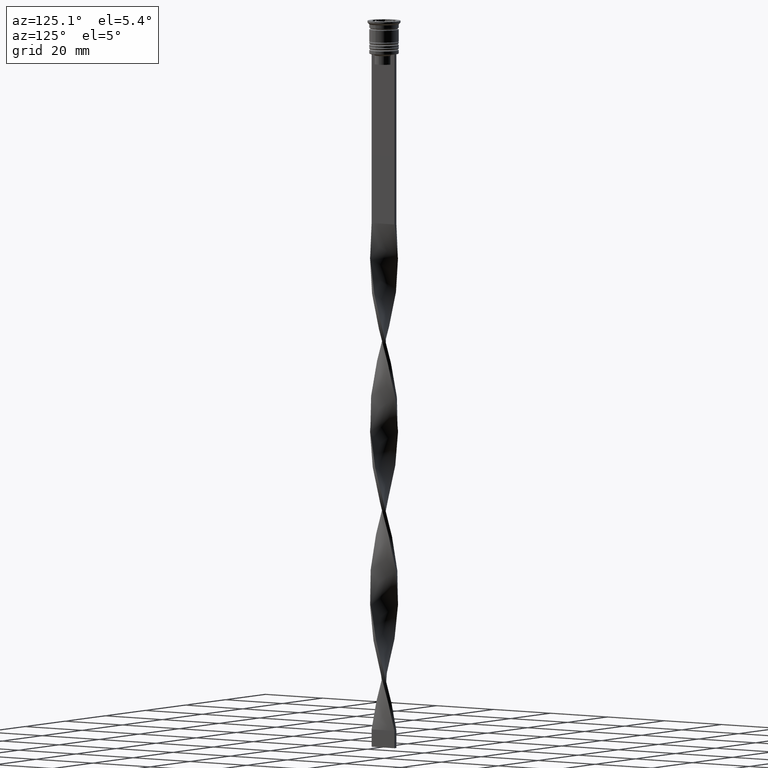
[diagram: clean part render]
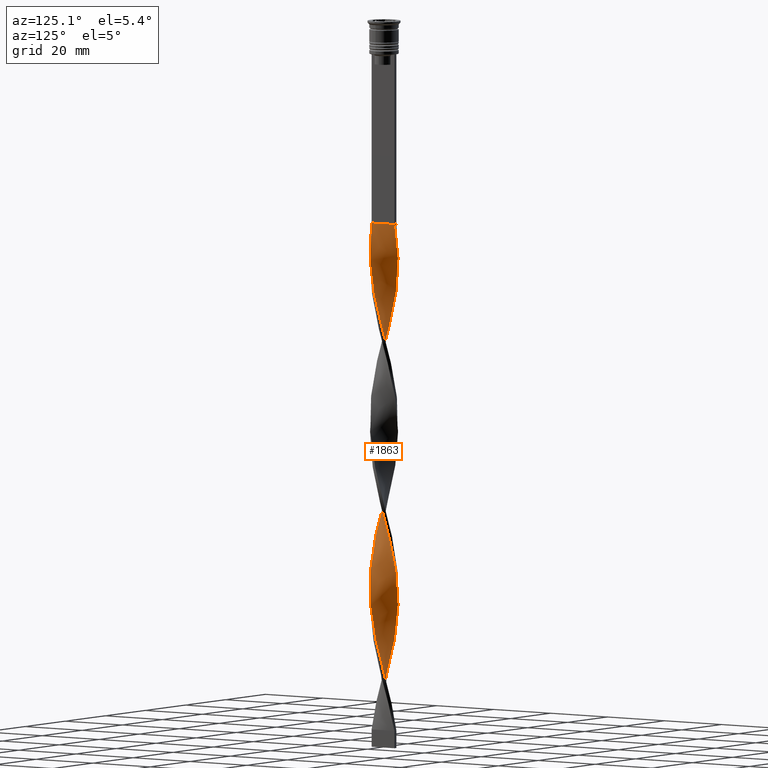
[diagram: same view with one face highlighted and labeled with its STEP entity id]
A machine part, auxiliary view. The second image highlights one B-rep face of the part: STEP entity #1863.
In plain terms, the highlighted face is a freeform B-spline surface patch.
Its self-contained STEP definition (entity closure, byte-faithful):
#8 = CARTESIAN_POINT ( 'NONE',  ( 3.927262761293755400, -0.9829235285346255013, -77.10784313725490335 ) ) ;
#15 = CARTESIAN_POINT ( 'NONE',  ( -3.984134067727318040, -0.6137391387019219824, -184.4607843137254690 ) ) ;
#28 = CARTESIAN_POINT ( 'NONE',  ( 1.226484621108232309, -3.840017639827321805, -61.36274509803921262 ) ) ;
#39 = CARTESIAN_POINT ( 'NONE',  ( 3.856468655234277065, 1.231739002543613681, -85.69607843137254122 ) ) ;
#49 = CARTESIAN_POINT ( 'NONE',  ( -2.020147525076906536, 3.508352239459040067, -165.8529411764705799 ) ) ;
#70 = CARTESIAN_POINT ( 'NONE',  ( 2.821583537095227356, -2.903135856687522942, -165.8529411764705799 ) ) ;
#88 = CARTESIAN_POINT ( 'NONE',  ( -3.493386227310585568, 2.011529931876906208, -121.4803921568627345 ) ) ;
#98 = CARTESIAN_POINT ( 'NONE',  ( -3.357783987531980152, 2.230535068783684682, -173.0098039215686185 ) ) ;
#106 = CARTESIAN_POINT ( 'NONE',  ( -4.029070884911789996, -0.1287936502943096417, -130.0686274509803866 ) ) ;
#121 = CARTESIAN_POINT ( 'NONE',  ( -1.911202779450789535, -3.549268084523846678, -198.7745098039215463 ) ) ;
#125 = CARTESIAN_POINT ( 'NONE',  ( -2.890751590931330828, -2.809547159157144591, -141.5196078431372371 ) ) ;
#126 = CARTESIAN_POINT ( 'NONE',  ( -3.803522343308519016, -1.335371777428621565, -89.99019607843136725 ) ) ;
#131 = CARTESIAN_POINT ( 'NONE',  ( 2.020147525076906980, 3.508352239459040067, -194.4803921568627629 ) ) ;
#138 = CARTESIAN_POINT ( 'NONE',  ( -0.8706545849681186500, -3.953668176878986085, -203.0686274509803582 ) ) ;
#142 = CARTESIAN_POINT ( 'NONE',  ( -2.821583537095226468, 2.903135856687523830, -117.1862745098039369 ) ) ;
#147 = CARTESIAN_POINT ( 'NONE',  ( 2.821583537095227356, -2.903135856687522942, -165.8529411764705799 ) ) ;
#155 = CARTESIAN_POINT ( 'NONE',  ( -2.240090901653235100, -3.372169066272034499, -197.3431372549019613 ) ) ;
#161 = CARTESIAN_POINT ( 'NONE',  ( -3.064287033196559040, -2.619187847059357477, -95.71568627450979250 ) ) ;
#166 = CARTESIAN_POINT ( 'NONE',  ( 3.936802525448487522, -0.8669405260007250202, -130.0686274509803866 ) ) ;
#169 = CARTESIAN_POINT ( 'NONE',  ( 3.564473500076193790, 1.919390561205868817, -185.8921568627451109 ) ) ;
#181 = CARTESIAN_POINT ( 'NONE',  ( 1.582314657248346412, 3.726367102775658413, -151.5392156862744741 ) ) ;
#182 = CARTESIAN_POINT ( 'NONE',  ( -0.4999999999999994449, 4.000000000000000000, -204.5000000000000000 ) ) ;
#188 = CARTESIAN_POINT ( 'NONE',  ( 3.679781925323283076, 1.687820026322619293, -140.0882352941176237 ) ) ;
#200 = CARTESIAN_POINT ( 'NONE',  ( 2.020147525076906536, 3.508352239459040067, -194.4803921568627914 ) ) ;
#203 = CARTESIAN_POINT ( 'NONE',  ( 1.341092642212325936, -3.819817009255230822, -114.3235294117646959 ) ) ;
#222 = CARTESIAN_POINT ( 'NONE',  ( -2.325278115975899507, 3.292883490705915239, -69.95098039215686470 ) ) ;
#240 = CARTESIAN_POINT ( 'NONE',  ( 0.6163684578805426195, 4.001202492166771485, -200.2058823529411598 ) ) ;
#241 = CARTESIAN_POINT ( 'NONE',  ( -3.710471077655235206, 1.575564781874740694, -78.53921568627450256 ) ) ;
#245 = CARTESIAN_POINT ( 'NONE',  ( 3.710471077655234762, -1.575564781874742026, -127.2058823529411740 ) ) ;
#254 = CARTESIAN_POINT ( 'NONE',  ( -3.493386227310585568, 2.011529931876906208, -121.4803921568627345 ) ) ;
#262 = CARTESIAN_POINT ( 'NONE',  ( 3.803522343308519016, -1.335371777428622009, -75.67647058823528994 ) ) ;
#266 = VERTEX_POINT ( 'NONE', #1638 ) ;
#272 = CARTESIAN_POINT ( 'NONE',  ( -3.927262761293755400, 0.9829235285346252793, -125.7745098039216032 ) ) ;
#280 = CARTESIAN_POINT ( 'NONE',  ( 3.151094474987767402, 2.541679576361500548, -91.42156862745096646 ) ) ;
#295 = CARTESIAN_POINT ( 'NONE',  ( 4.017136395662697979, 0.5021420494578370253, -82.83333333333332860 ) ) ;
#301 = CARTESIAN_POINT ( 'NONE',  ( -3.936802525448486634, 0.8669405260007252423, -81.40196078431371518 ) ) ;
#306 = CARTESIAN_POINT ( 'NONE',  ( -3.151094474987767402, 2.541679576361500104, -171.5784313725490335 ) ) ;
#316 = CARTESIAN_POINT ( 'NONE',  ( 0.6163684578805426195, 4.001202492166770597, -102.8725490196078312 ) ) ;
#323 = CARTESIAN_POINT ( 'NONE',  ( 0.8706545849681190941, -3.953668176878984752, -59.93137254901961342 ) ) ;
#335 = CARTESIAN_POINT ( 'NONE',  ( 3.984134067727318040, -0.6137391387019215383, -78.53921568627450256 ) ) ;
#337 = CARTESIAN_POINT ( 'NONE',  ( 3.936802525448487522, -0.8669405260007250202, -130.0686274509803866 ) ) ;
#342 = CARTESIAN_POINT ( 'NONE',  ( -3.064287033196559040, -2.619187847059357477, -193.0490196078431211 ) ) ;
#353 = CARTESIAN_POINT ( 'NONE',  ( 3.493386227310586012, -2.011529931876905763, -170.1470588235293917 ) ) ;
#360 = CARTESIAN_POINT ( 'NONE',  ( 3.984134067727318040, 0.6137391387019215383, -135.7941176470588118 ) ) ;
#366 = CARTESIAN_POINT ( 'NONE',  ( -0.6163684578805430636, -4.001202492166771485, -151.5392156862744741 ) ) ;
#379 = CARTESIAN_POINT ( 'NONE',  ( 3.564473500076193790, -1.919390561205869039, -125.7745098039216032 ) ) ;
#382 = CARTESIAN_POINT ( 'NONE',  ( -1.226484621108231421, 3.840017639827321805, -110.0294117647058698 ) ) ;
#393 = CARTESIAN_POINT ( 'NONE',  ( 3.306990529297890280, 2.335239837431195120, -142.9509803921568789 ) ) ;
#397 = CARTESIAN_POINT ( 'NONE',  ( 0.2435115214243305515, 4.023767157643892034, -104.3039215686274446 ) ) ;
#414 = CARTESIAN_POINT ( 'NONE',  ( -3.151094474987767402, -2.541679576361500104, -140.0882352941176237 ) ) ;
#431 = CARTESIAN_POINT ( 'NONE',  ( -4.041005374160881125, -0.2445547488692189353, -183.0294117647059124 ) ) ;
#437 = CARTESIAN_POINT ( 'NONE',  ( -2.530837219374230784, 3.137652461479778498, -115.7549019607843093 ) ) ;
#443 = CARTESIAN_POINT ( 'NONE',  ( 0.1293454150318811002, -4.046331823121016136, -154.4019607843137294 ) ) ;
#454 = CARTESIAN_POINT ( 'NONE',  ( -3.493386227310586456, -2.011529931876905319, -92.85294117647057988 ) ) ;
#460 = CARTESIAN_POINT ( 'NONE',  ( 1.226484621108232309, -3.840017639827321805, -158.6960784313725412 ) ) ;
#466 = CARTESIAN_POINT ( 'NONE',  ( -4.017136395662697979, 0.5021420494578374694, -180.1666666666666288 ) ) ;
#475 = CARTESIAN_POINT ( 'NONE',  ( 3.984134067727318040, 0.6137391387019215383, -135.7941176470588118 ) ) ;
#478 = CARTESIAN_POINT ( 'NONE',  ( 0.2435115214243305515, 4.023767157643892034, -201.6372549019607732 ) ) ;
#493 = CARTESIAN_POINT ( 'NONE',  ( 1.680620083644616125, 3.664084624357134778, -195.9117647058823479 ) ) ;
#496 = CARTESIAN_POINT ( 'NONE',  ( -0.5000000000000005551, -4.000000000000000000, -107.1666666666666572 ) ) ;
#502 = EDGE_CURVE ( 'NONE', #3267, #266, #563, .T. ) ;
#513 = CARTESIAN_POINT ( 'NONE',  ( -3.151094474987766958, 2.541679576361500104, -74.24509803921567652 ) ) ;
#517 = CARTESIAN_POINT ( 'NONE',  ( -0.8706545849681186500, -3.953668176878985641, -105.7352941176470722 ) ) ;
#532 = CARTESIAN_POINT ( 'NONE',  ( 0.2435115214243295800, -4.023767157643892034, -110.0294117647058698 ) ) ;
#533 = CARTESIAN_POINT ( 'NONE',  ( -3.856468655234277065, 1.231739002543613237, -79.97058823529411598 ) ) ;
#537 = CARTESIAN_POINT ( 'NONE',  ( 2.325278115975899507, -3.292883490705915239, -118.6176470588235219 ) ) ;
#550 = CARTESIAN_POINT ( 'NONE',  ( -2.240090901653234212, 3.372169066272035387, -114.3235294117646959 ) ) ;
#558 = CARTESIAN_POINT ( 'NONE',  ( -1.226484621108232531, -3.840017639827321805, -201.6372549019607732 ) ) ;
#563 = LINE ( 'NONE', #828, #2763 ) ;
#568 = CARTESIAN_POINT ( 'NONE',  ( -3.679781925323282632, 1.687820026322620182, -122.9117647058823621 ) ) ;
#571 = CARTESIAN_POINT ( 'NONE',  ( 2.325278115975899507, -3.292883490705915239, -118.6176470588235219 ) ) ;
#576 = CARTESIAN_POINT ( 'NONE',  ( 3.856468655234276621, 1.231739002543613681, -85.69607843137254122 ) ) ;
#579 = EDGE_LOOP ( 'NONE', ( #1577, #3077, #1030, #643 ) ) ;
#587 = CARTESIAN_POINT ( 'NONE',  ( 2.530837219374230340, -3.137652461479778943, -67.08823529411763786 ) ) ;
#591 = CARTESIAN_POINT ( 'NONE',  ( -2.630408706874892921, 3.077414741952791744, -71.38235294117646390 ) ) ;
#596 = CARTESIAN_POINT ( 'NONE',  ( -3.710471077655235206, 1.575564781874740694, -175.8725490196078454 ) ) ;
#609 = CARTESIAN_POINT ( 'NONE',  ( 1.911202779450789535, -3.549268084523846678, -64.22549019607842524 ) ) ;
#619 = CARTESIAN_POINT ( 'NONE',  ( -3.493386227310586456, -2.011529931876905319, -190.1862745098039227 ) ) ;
#630 = CARTESIAN_POINT ( 'NONE',  ( 3.306990529297890724, -2.335239837431193788, -71.38235294117646390 ) ) ;
#633 = CARTESIAN_POINT ( 'NONE',  ( 3.710471077655234762, -1.575564781874742026, -127.2058823529411740 ) ) ;
#637 = CARTESIAN_POINT ( 'NONE',  ( 3.064287033196558596, -2.619187847059357921, -69.95098039215686470 ) ) ;
#643 = ORIENTED_EDGE ( 'NONE', *, *, #937, .F. ) ;
#647 = CARTESIAN_POINT ( 'NONE',  ( 3.803522343308519016, -1.335371777428622009, -173.0098039215686185 ) ) ;
#654 = CARTESIAN_POINT ( 'NONE',  ( 0.6163684578805426195, 4.001202492166771485, -102.8725490196078312 ) ) ;
#672 = CARTESIAN_POINT ( 'NONE',  ( -3.984134067727318040, 0.6137391387019228706, -127.2058823529411740 ) ) ;
#688 = CARTESIAN_POINT ( 'NONE',  ( 1.226484621108231199, 3.840017639827321805, -152.9705882352941160 ) ) ;
#692 = CARTESIAN_POINT ( 'NONE',  ( -3.803522343308519016, 1.335371777428620899, -124.3431372549019471 ) ) ;
#693 = CARTESIAN_POINT ( 'NONE',  ( 0.5000000000000000000, 4.000000000000000000, -58.50000000000000000 ) ) ;
#706 = CARTESIAN_POINT ( 'NONE',  ( -3.493386227310586456, -2.011529931876905319, -190.1862745098039227 ) ) ;
#709 = CARTESIAN_POINT ( 'NONE',  ( 3.927262761293754956, -0.9829235285346253903, -174.4411764705882320 ) ) ;
#714 = CARTESIAN_POINT ( 'NONE',  ( -3.856468655234277065, -1.231739002543614125, -134.3627450980391984 ) ) ;
#722 = CARTESIAN_POINT ( 'NONE',  ( -3.564473500076193790, 1.919390561205869261, -174.4411764705882320 ) ) ;
#730 = CARTESIAN_POINT ( 'NONE',  ( 3.064287033196558596, -2.619187847059357921, -167.2843137254901933 ) ) ;
#737 = CARTESIAN_POINT ( 'NONE',  ( -0.9787305500464340557, -3.910509750710999821, -150.1078431372548891 ) ) ;
#745 = CARTESIAN_POINT ( 'NONE',  ( 0.5000000000000000000, 4.000000000000000000, -155.8333333333333144 ) ) ;
#755 = CARTESIAN_POINT ( 'NONE',  ( 3.856468655234277065, 1.231739002543613681, -183.0294117647059124 ) ) ;
#762 = CARTESIAN_POINT ( 'NONE',  ( -3.151094474987766958, 2.541679576361500104, -171.5784313725490620 ) ) ;
#770 = CARTESIAN_POINT ( 'NONE',  ( -2.630408706874893365, 3.077414741952792188, -71.38235294117646390 ) ) ;
#771 = CARTESIAN_POINT ( 'NONE',  ( 3.679781925323283076, -1.687820026322619293, -171.5784313725490620 ) ) ;
#788 = CARTESIAN_POINT ( 'NONE',  ( 2.240090901653234656, 3.372169066272035831, -148.6764705882353326 ) ) ;
#806 = CARTESIAN_POINT ( 'NONE',  ( -0.4999999999999994449, 4.000000000000000000, -204.5000000000000000 ) ) ;
#809 = CARTESIAN_POINT ( 'NONE',  ( -1.226484621108232531, -3.840017639827321805, -104.3039215686274446 ) ) ;
#824 = CARTESIAN_POINT ( 'NONE',  ( 4.041005374160881125, 0.2445547488692193794, -134.3627450980391984 ) ) ;
#828 = CARTESIAN_POINT ( 'NONE',  ( 0.5000000000000000000, -4.000000000000000000, -58.50000000000000000 ) ) ;
#835 = CARTESIAN_POINT ( 'NONE',  ( 3.679781925323283076, -1.687820026322619293, -74.24509803921567652 ) ) ;
#839 = CARTESIAN_POINT ( 'NONE',  ( -1.341092642212326380, 3.819817009255230822, -65.65686274509803866 ) ) ;
#844 = CARTESIAN_POINT ( 'NONE',  ( -2.240090901653235544, -3.372169066272034499, -100.0098039215686327 ) ) ;
#850 = DIRECTION ( 'NONE',  ( 0.000000000000000000, 1.000000000000000000, 0.000000000000000000 ) ) ;
#863 = CARTESIAN_POINT ( 'NONE',  ( 1.341092642212325936, -3.819817009255230822, -114.3235294117646959 ) ) ;
#869 = CARTESIAN_POINT ( 'NONE',  ( 4.041005374160881125, -0.2445547488692185190, -79.97058823529411598 ) ) ;
#879 = CARTESIAN_POINT ( 'NONE',  ( 2.240090901653234656, -3.372169066272035387, -65.65686274509803866 ) ) ;
#887 = CARTESIAN_POINT ( 'NONE',  ( 2.325278115975899951, 3.292883490705914795, -95.71568627450979250 ) ) ;
#898 = CARTESIAN_POINT ( 'NONE',  ( 3.564473500076193790, 1.919390561205868817, -88.55882352941175384 ) ) ;
#904 = CARTESIAN_POINT ( 'NONE',  ( -4.029070884911789996, 0.1287936502943097528, -181.5980392156862706 ) ) ;
#920 = CARTESIAN_POINT ( 'NONE',  ( -1.226484621108231421, 3.840017639827321805, -110.0294117647058698 ) ) ;
#927 = CARTESIAN_POINT ( 'NONE',  ( 1.582314657248345080, -3.726367102775659745, -62.79411764705881893 ) ) ;
#937 = EDGE_CURVE ( 'NONE', #266, #1673, #1918, .T. ) ;
#938 = CARTESIAN_POINT ( 'NONE',  ( -2.325278115975899063, -3.292883490705915683, -144.3823529411764639 ) ) ;
#944 = CARTESIAN_POINT ( 'NONE',  ( -3.803522343308519016, -1.335371777428621565, -187.3235294117646959 ) ) ;
#952 = CARTESIAN_POINT ( 'NONE',  ( -3.710471077655235206, -1.575564781874740694, -135.7941176470588118 ) ) ;
#963 = CARTESIAN_POINT ( 'NONE',  ( -3.710471077655235206, -1.575564781874740694, -135.7941176470588118 ) ) ;
#980 = CARTESIAN_POINT ( 'NONE',  ( 1.911202779450789979, 3.549268084523846678, -150.1078431372548891 ) ) ;
#987 = CARTESIAN_POINT ( 'NONE',  ( 3.564473500076194235, 1.919390561205868817, -185.8921568627451109 ) ) ;
#1002 = CARTESIAN_POINT ( 'NONE',  ( -0.1293454150318815721, 4.046331823121016136, -105.7352941176470722 ) ) ;
#1017 = CARTESIAN_POINT ( 'NONE',  ( -0.8706545849681194271, 3.953668176878984752, -108.5980392156862706 ) ) ;
#1021 = CARTESIAN_POINT ( 'NONE',  ( 0.1293454150318809337, 4.046331823121015248, -59.93137254901961342 ) ) ;
#1022 = CARTESIAN_POINT ( 'NONE',  ( 1.680620083644616125, 3.664084624357134778, -195.9117647058823479 ) ) ;
#1030 = ORIENTED_EDGE ( 'NONE', *, *, #3005, .F. ) ;
#1032 = CARTESIAN_POINT ( 'NONE',  ( 2.530837219374231672, 3.137652461479777610, -147.2450980392156907 ) ) ;
#1038 = CARTESIAN_POINT ( 'NONE',  ( -2.240090901653234656, 3.372169066272035387, -114.3235294117646959 ) ) ;
#1039 = CARTESIAN_POINT ( 'NONE',  ( -4.041005374160881125, -0.2445547488692189353, -85.69607843137254122 ) ) ;
#1046 = CARTESIAN_POINT ( 'NONE',  ( 3.927262761293755400, -0.9829235285346255013, -174.4411764705882320 ) ) ;
#1054 = CARTESIAN_POINT ( 'NONE',  ( 2.821583537095227356, 2.903135856687522498, -145.8137254901960489 ) ) ;
#1058 = CARTESIAN_POINT ( 'NONE',  ( -3.679781925323283076, -1.687820026322619738, -91.42156862745098067 ) ) ;
#1061 = CARTESIAN_POINT ( 'NONE',  ( 2.630408706874893809, -3.077414741952791744, -120.0490196078431211 ) ) ;
#1062 = CARTESIAN_POINT ( 'NONE',  ( 0.9787305500464337227, 3.910509750710999821, -198.7745098039215463 ) ) ;
#1078 = CARTESIAN_POINT ( 'NONE',  ( 2.821583537095227356, 2.903135856687522498, -145.8137254901960489 ) ) ;
#1093 = CARTESIAN_POINT ( 'NONE',  ( -0.6163684578805417313, 4.001202492166771485, -62.79411764705881893 ) ) ;
#1115 = CARTESIAN_POINT ( 'NONE',  ( 3.306990529297890724, 2.335239837431195120, -142.9509803921568789 ) ) ;
#1132 = CARTESIAN_POINT ( 'NONE',  ( 1.680620083644616569, -3.664084624357134334, -115.7549019607843093 ) ) ;
#1142 = CARTESIAN_POINT ( 'NONE',  ( -0.1293454150318815721, 4.046331823121016136, -105.7352941176470722 ) ) ;
#1150 = CARTESIAN_POINT ( 'NONE',  ( 3.984134067727318040, -0.6137391387019215383, -78.53921568627450256 ) ) ;
#1165 = CARTESIAN_POINT ( 'NONE',  ( -4.029070884911789996, -0.1287936502943096417, -130.0686274509803866 ) ) ;
#1175 = CARTESIAN_POINT ( 'NONE',  ( 2.890751590931330384, 2.809547159157145035, -92.85294117647057988 ) ) ;
#1190 = CARTESIAN_POINT ( 'NONE',  ( -2.530837219374230340, -3.137652461479778943, -195.9117647058823479 ) ) ;
#1201 = CARTESIAN_POINT ( 'NONE',  ( 4.041005374160881125, -0.2445547488692184912, -79.97058823529411598 ) ) ;
#1204 = CARTESIAN_POINT ( 'NONE',  ( 3.357783987531981040, -2.230535068783683350, -124.3431372549019471 ) ) ;
#1209 = CARTESIAN_POINT ( 'NONE',  ( 0.5000000000000000000, 4.000000000000000000, -155.8333333333333144 ) ) ;
#1224 = CARTESIAN_POINT ( 'NONE',  ( 2.630408706874892921, 3.077414741952791744, -191.6176470588235077 ) ) ;
#1228 = CARTESIAN_POINT ( 'NONE',  ( 4.029070884911789996, -0.1287936502943111128, -132.9313725490196134 ) ) ;
#1233 = CARTESIAN_POINT ( 'NONE',  ( 3.936802525448487522, 0.8669405260007247982, -84.26470588235294201 ) ) ;
#1251 = CARTESIAN_POINT ( 'NONE',  ( 3.306990529297891168, -2.335239837431193788, -168.7156862745097783 ) ) ;
#1268 = CARTESIAN_POINT ( 'NONE',  ( 4.029070884911789108, 0.1287936502943091699, -178.7352941176470438 ) ) ;
#1289 = CARTESIAN_POINT ( 'NONE',  ( -3.936802525448487522, -0.8669405260007234659, -132.9313725490196134 ) ) ;
#1304 = CARTESIAN_POINT ( 'NONE',  ( -1.582314657248345968, -3.726367102775659301, -200.2058823529411882 ) ) ;
#1308 = CARTESIAN_POINT ( 'NONE',  ( 4.017136395662697979, 0.5021420494578370253, -180.1666666666666288 ) ) ;
#1315 = CARTESIAN_POINT ( 'NONE',  ( -3.936802525448487522, -0.8669405260007234659, -132.9313725490196134 ) ) ;
#1323 = CARTESIAN_POINT ( 'NONE',  ( -3.984134067727318040, -0.6137391387019219824, -184.4607843137254690 ) ) ;
#1327 = CARTESIAN_POINT ( 'NONE',  ( -0.4999999999999994449, 4.000000000000000000, -107.1666666666666572 ) ) ;
#1331 = CARTESIAN_POINT ( 'NONE',  ( 3.064287033196558596, -2.619187847059357921, -167.2843137254901933 ) ) ;
#1352 = CARTESIAN_POINT ( 'NONE',  ( 0.9787305500464342778, -3.910509750710998933, -112.8921568627450966 ) ) ;
#1353 = CARTESIAN_POINT ( 'NONE',  ( 0.5000000000000000000, -4.000000000000000000, -155.8333333333333144 ) ) ;
#1368 = CARTESIAN_POINT ( 'NONE',  ( -1.911202779450789535, -3.549268084523846678, -101.4411764705882320 ) ) ;
#1380 = CARTESIAN_POINT ( 'NONE',  ( 1.341092642212326824, 3.819817009255229934, -197.3431372549019898 ) ) ;
#1383 = CARTESIAN_POINT ( 'NONE',  ( 0.6163684578805417313, -4.001202492166771485, -111.4607843137254974 ) ) ;
#1397 = CARTESIAN_POINT ( 'NONE',  ( 0.2435115214243305515, 4.023767157643892034, -201.6372549019607732 ) ) ;
#1398 = CARTESIAN_POINT ( 'NONE',  ( -0.8706545849681186500, -3.953668176878986085, -105.7352941176470722 ) ) ;
#1406 = CARTESIAN_POINT ( 'NONE',  ( -3.803522343308519016, -1.335371777428621565, -89.99019607843136725 ) ) ;
#1427 = CARTESIAN_POINT ( 'NONE',  ( -0.9787305500464337227, 3.910509750710999821, -64.22549019607842524 ) ) ;
#1437 = CARTESIAN_POINT ( 'NONE',  ( 0.5000000000000000000, -4.000000000000000000, -58.50000000000000000 ) ) ;
#1445 = CARTESIAN_POINT ( 'NONE',  ( 3.927262761293754956, -0.9829235285346253903, -77.10784313725490335 ) ) ;
#1455 = CARTESIAN_POINT ( 'NONE',  ( -3.306990529297891168, 2.335239837431193344, -120.0490196078431353 ) ) ;
#1459 = CARTESIAN_POINT ( 'NONE',  ( -1.226484621108232531, -3.840017639827321805, -104.3039215686274446 ) ) ;
#1465 = CARTESIAN_POINT ( 'NONE',  ( -1.911202779450789535, -3.549268084523846678, -198.7745098039215463 ) ) ;
#1490 = CARTESIAN_POINT ( 'NONE',  ( -0.9787305500464337227, 3.910509750710999821, -161.5588235294117680 ) ) ;
#1499 = CARTESIAN_POINT ( 'NONE',  ( 2.821583537095227356, -2.903135856687522942, -68.51960784313725128 ) ) ;
#1506 = CARTESIAN_POINT ( 'NONE',  ( -3.856468655234276621, 1.231739002543613237, -177.3039215686274304 ) ) ;
#1516 = CARTESIAN_POINT ( 'NONE',  ( 0.2435115214243305515, 4.023767157643892034, -104.3039215686274446 ) ) ;
#1522 = CARTESIAN_POINT ( 'NONE',  ( 0.5000000000000000000, -4.000000000000000000, -58.50000000000000000 ) ) ;
#1534 = CARTESIAN_POINT ( 'NONE',  ( 3.936802525448487522, 0.8669405260007247982, -181.5980392156862706 ) ) ;
#1538 = CARTESIAN_POINT ( 'NONE',  ( 3.927262761293755400, 0.9829235285346239470, -137.2254901960784537 ) ) ;
#1542 = CARTESIAN_POINT ( 'NONE',  ( 0.8706545849681190941, -3.953668176878984752, -157.2647058823529278 ) ) ;
#1559 = CARTESIAN_POINT ( 'NONE',  ( 3.984134067727318040, -0.6137391387019215383, -175.8725490196078454 ) ) ;
#1573 = CARTESIAN_POINT ( 'NONE',  ( -3.927262761293754956, 0.9829235285346251683, -125.7745098039216032 ) ) ;
#1577 = ORIENTED_EDGE ( 'NONE', *, *, #502, .F. ) ;
#1598 = CARTESIAN_POINT ( 'NONE',  ( -2.630408706874892033, -3.077414741952792632, -142.9509803921568789 ) ) ;
#1599 = CARTESIAN_POINT ( 'NONE',  ( -4.017136395662697979, 0.5021420494578374694, -82.83333333333332860 ) ) ;
#1611 = CARTESIAN_POINT ( 'NONE',  ( -3.306990529297890724, -2.335239837431193788, -191.6176470588235077 ) ) ;
#1615 = CARTESIAN_POINT ( 'NONE',  ( 1.341092642212326824, 3.819817009255229934, -100.0098039215686327 ) ) ;
#1621 = CARTESIAN_POINT ( 'NONE',  ( 1.582314657248345080, -3.726367102775659301, -160.1274509803921831 ) ) ;
#1635 = CARTESIAN_POINT ( 'NONE',  ( 2.890751590931329496, -2.809547159157145924, -121.4803921568627345 ) ) ;
#1636 = CARTESIAN_POINT ( 'NONE',  ( -3.357783987531979708, -2.230535068783685571, -138.6568627450980387 ) ) ;
#1638 = CARTESIAN_POINT ( 'NONE',  ( 0.5000000000000000000, 4.000000000000000000, -58.50000000000000000 ) ) ;
#1644 = CARTESIAN_POINT ( 'NONE',  ( 3.679781925323283076, 1.687820026322619293, -140.0882352941176237 ) ) ;
#1646 = CARTESIAN_POINT ( 'NONE',  ( -0.5000000000000005551, -4.000000000000000000, -204.5000000000000000 ) ) ;
#1657 = CARTESIAN_POINT ( 'NONE',  ( 3.927262761293754956, 0.9829235285346239470, -137.2254901960784821 ) ) ;
#1658 = CARTESIAN_POINT ( 'NONE',  ( -0.4999999999999994449, 4.000000000000000000, -204.5000000000000000 ) ) ;
#1659 = B_SPLINE_CURVE_WITH_KNOTS ( 'NONE', 3,
 ( #1646, #2525, #2839, #182 ),
 .UNSPECIFIED., .F., .F.,
 ( 4, 4 ),
 ( 0.000000000000000000, 1.000000000000000000 ),
 .UNSPECIFIED. ) ;
#1670 = CARTESIAN_POINT ( 'NONE',  ( 2.325278115975899951, 3.292883490705914795, -193.0490196078431211 ) ) ;
#1673 = VERTEX_POINT ( 'NONE', #2120 ) ;
#1674 = CARTESIAN_POINT ( 'NONE',  ( 1.226484621108231199, 3.840017639827321805, -152.9705882352941160 ) ) ;
#1691 = CARTESIAN_POINT ( 'NONE',  ( -3.856468655234276621, 1.231739002543613237, -79.97058823529411598 ) ) ;
#1705 = CARTESIAN_POINT ( 'NONE',  ( -2.240090901653235100, -3.372169066272034499, -100.0098039215686327 ) ) ;
#1713 = CARTESIAN_POINT ( 'NONE',  ( -2.821583537095227356, -2.903135856687522942, -97.14705882352939170 ) ) ;
#1726 = CARTESIAN_POINT ( 'NONE',  ( -2.530837219374230784, 3.137652461479778498, -115.7549019607843093 ) ) ;
#1730 = CARTESIAN_POINT ( 'NONE',  ( -2.325278115975899507, 3.292883490705915239, -69.95098039215686470 ) ) ;
#1735 = CARTESIAN_POINT ( 'NONE',  ( 2.530837219374230340, -3.137652461479778943, -67.08823529411763786 ) ) ;
#1747 = CARTESIAN_POINT ( 'NONE',  ( -3.803522343308519016, 1.335371777428620899, -124.3431372549019471 ) ) ;
#1755 = CARTESIAN_POINT ( 'NONE',  ( 3.710471077655235206, 1.575564781874741138, -87.12745098039215463 ) ) ;
#1767 = CARTESIAN_POINT ( 'NONE',  ( 0.8706545849681190941, -3.953668176878985197, -59.93137254901961342 ) ) ;
#1771 = CARTESIAN_POINT ( 'NONE',  ( -2.890751590931329940, 2.809547159157145479, -72.81372549019607732 ) ) ;
#1777 = CARTESIAN_POINT ( 'NONE',  ( 0.1293454150318809337, 4.046331823121015248, -157.2647058823529278 ) ) ;
#1795 = CARTESIAN_POINT ( 'NONE',  ( 1.341092642212326824, 3.819817009255229934, -100.0098039215686327 ) ) ;
#1801 = CARTESIAN_POINT ( 'NONE',  ( -2.240090901653235544, -3.372169066272034499, -197.3431372549019898 ) ) ;
#1810 = CARTESIAN_POINT ( 'NONE',  ( 3.064287033196558596, -2.619187847059357921, -69.95098039215686470 ) ) ;
#1817 = CARTESIAN_POINT ( 'NONE',  ( -4.041005374160881125, -0.2445547488692189630, -183.0294117647059124 ) ) ;
#1825 = CARTESIAN_POINT ( 'NONE',  ( 3.357783987531980152, 2.230535068783684238, -187.3235294117646959 ) ) ;
#1828 = CARTESIAN_POINT ( 'NONE',  ( 4.017136395662697979, -0.5021420494578380245, -131.5000000000000000 ) ) ;
#1832 = CARTESIAN_POINT ( 'NONE',  ( 1.226484621108232309, -3.840017639827321805, -158.6960784313725412 ) ) ;
#1851 = CARTESIAN_POINT ( 'NONE',  ( 2.890751590931329496, -2.809547159157145924, -121.4803921568627345 ) ) ;
#1855 = CARTESIAN_POINT ( 'NONE',  ( 3.803522343308519016, -1.335371777428622009, -173.0098039215686185 ) ) ;
#1863 = ADVANCED_FACE ( 'NONE', ( #2761 ), #2684, .T. ) ;
#1871 = CARTESIAN_POINT ( 'NONE',  ( 2.240090901653235100, -3.372169066272035387, -162.9901960784313815 ) ) ;
#1887 = CARTESIAN_POINT ( 'NONE',  ( -3.064287033196558596, 2.619187847059357921, -118.6176470588235219 ) ) ;
#1906 = CARTESIAN_POINT ( 'NONE',  ( -0.6163684578805417313, 4.001202492166770597, -160.1274509803921831 ) ) ;
#1912 = CARTESIAN_POINT ( 'NONE',  ( 3.679781925323283076, -1.687820026322619293, -171.5784313725490335 ) ) ;
#1917 = CARTESIAN_POINT ( 'NONE',  ( -1.341092642212325714, -3.819817009255231266, -148.6764705882353326 ) ) ;
#1918 =( BOUNDED_CURVE ( )  B_SPLINE_CURVE ( 2, ( #693, #2883, #3194, #2069, #3795, #839, #2296, #3254, #1730, #591, #1771, #513, #2963, #3174, #241, #533, #301, #1599, #2844, #1039, #3723, #2783, #126, #1058, #454, #2530, #161, #3682, #2201, #1705, #2905, #2882, #1459, #1398, #3528, #2006, #532, #3193, #3840, #863, #2049, #3236, #571, #3275, #1851, #2986, #1204, #379, #633, #3001, #337, #1828, #1228, #3018, #360, #1538, #2718, #1644, #2450, #393, #2838, #1054, #1032, #2196, #980, #181, #688, #3659, #745, #3349, #2754, #1906, #2486, #2524, #1924, #3677, #3381, #2815, #1941, #762, #98, #722, #2162, #3717, #3056, #466, #3092, #431, #1323, #2180, #3366, #2235, #706, #1611, #3070, #2777, #3123, #155, #121, #1304, #2797, #138, #2504 ),
 .UNSPECIFIED., .F., .T. ) 
 B_SPLINE_CURVE_WITH_KNOTS ( ( 3, 2, 2, 2, 2, 2, 2, 2, 2, 2, 2, 2, 2, 2, 2, 2, 2, 2, 2, 2, 2, 2, 2, 2, 2, 2, 2, 2, 2, 2, 2, 2, 2, 2, 2, 2, 2, 2, 2, 2, 2, 2, 2, 2, 2, 2, 2, 2, 2, 2, 2, 3 ),
 ( 0.000000000000000000, 0.01470588235294117453, 0.02941176470588234906, 0.04411764705882353227, 0.05882352941176469813, 0.07352941176470588480, 0.08823529411764706454, 0.1029411764705882443, 0.1176470588235293963, 0.1323529411764705899, 0.1470588235294117696, 0.1617647058823529493, 0.1764705882352941291, 0.1911764705882352811, 0.2058823529411764885, 0.2205882352941176405, 0.2352941176470587925, 0.2500000000000000000, 0.2647058823529411797, 0.2794117647058823595, 0.2941176470588235392, 0.3088235294117647189, 0.3235294117647058987, 0.3382352941176470229, 0.3529411764705882582, 0.3676470588235294379, 0.3823529411764705621, 0.3970588235294117418, 0.4117647058823529771, 0.4264705882352941013, 0.4411764705882352811, 0.4558823529411764608, 0.4705882352941175850, 0.4852941176470588203, 0.5000000000000000000, 0.5147058823529411242, 0.5294117647058823595, 0.5441176470588234837, 0.5588235294117647189, 0.5735294117647058432, 0.5882352941176470784, 0.6029411764705882026, 0.6176470588235294379, 0.6323529411764705621, 0.6470588235294117974, 0.6617647058823529216, 0.6764705882352940458, 0.6911764705882351700, 0.7058823529411765163, 0.7205882352941176405, 0.7352941176470588758, 0.7500000000000000000 ),
 .UNSPECIFIED. ) 
 CURVE ( )  GEOMETRIC_REPRESENTATION_ITEM ( )  RATIONAL_B_SPLINE_CURVE ( ( 1.000000000000000000, 0.9957341762950344677, 1.000000000000000000, 0.9957341762950344677, 1.000000000000000000, 0.9957341762950344677, 1.000000000000000000, 0.9957341762950344677, 1.000000000000000000, 0.9957341762950344677, 1.000000000000000000, 0.9957341762950344677, 1.000000000000000000, 0.9957341762950344677, 1.000000000000000000, 0.9957341762950344677, 1.000000000000000000, 0.9957341762950344677, 1.000000000000000000, 0.9957341762950344677, 1.000000000000000000, 0.9957341762950344677, 1.000000000000000000, 0.9957341762950344677, 1.000000000000000000, 0.9957341762950344677, 1.000000000000000000, 0.9957341762950344677, 1.000000000000000000, 0.9957341762950344677, 1.000000000000000000, 0.9957341762950344677, 1.000000000000000000, 0.9957341762950344677, 1.000000000000000000, 0.9957341762950344677, 1.000000000000000000, 0.9957341762950344677, 1.000000000000000000, 0.9957341762950344677, 1.000000000000000000, 0.9957341762950344677, 1.000000000000000000, 0.9957341762950344677, 1.000000000000000000, 0.9957341762950344677, 1.000000000000000000, 0.9957341762950344677, 1.000000000000000000, 0.9957341762950344677, 1.000000000000000000, 0.9957341762950344677, 1.000000000000000000, 0.9957341762950344677, 1.000000000000000000, 0.9957341762950344677, 1.000000000000000000, 0.9957341762950344677, 1.000000000000000000, 0.9957341762950344677, 1.000000000000000000, 0.9957341762950344677, 1.000000000000000000, 0.9957341762950344677, 1.000000000000000000, 0.9957341762950344677, 1.000000000000000000, 0.9957341762950344677, 1.000000000000000000, 0.9957341762950344677, 1.000000000000000000, 0.9957341762950344677, 1.000000000000000000, 0.9957341762950344677, 1.000000000000000000, 0.9957341762950344677, 1.000000000000000000, 0.9957341762950344677, 1.000000000000000000, 0.9957341762950344677, 1.000000000000000000, 0.9957341762950344677, 1.000000000000000000, 0.9957341762950344677, 1.000000000000000000, 0.9957341762950344677, 1.000000000000000000, 0.9957341762950344677, 1.000000000000000000, 0.9957341762950344677, 1.000000000000000000, 0.9957341762950344677, 1.000000000000000000, 0.9957341762950344677, 1.000000000000000000, 0.9957341762950344677, 1.000000000000000000, 0.9957341762950344677, 1.000000000000000000, 0.9957341762950344677, 1.000000000000000000, 0.9957341762950344677, 1.000000000000000000 ) ) 
 REPRESENTATION_ITEM ( '' )  );
#1919 = VERTEX_POINT ( 'NONE', #806 ) ;
#1924 = CARTESIAN_POINT ( 'NONE',  ( -1.680620083644616125, 3.664084624357134778, -164.4215686274509665 ) ) ;
#1935 = CARTESIAN_POINT ( 'NONE',  ( -4.017136395662697979, -0.5021420494578364702, -131.5000000000000000 ) ) ;
#1941 = CARTESIAN_POINT ( 'NONE',  ( -2.890751590931329940, 2.809547159157145479, -170.1470588235293917 ) ) ;
#1949 = CARTESIAN_POINT ( 'NONE',  ( -3.927262761293754956, -0.9829235285346250572, -88.55882352941175384 ) ) ;
#1952 = CARTESIAN_POINT ( 'NONE',  ( 2.325278115975899951, 3.292883490705914795, -193.0490196078431211 ) ) ;
#1973 = CARTESIAN_POINT ( 'NONE',  ( 1.911202779450789979, 3.549268084523846678, -150.1078431372548891 ) ) ;
#1991 = CARTESIAN_POINT ( 'NONE',  ( 3.564473500076194235, -1.919390561205869039, -125.7745098039216032 ) ) ;
#2006 = CARTESIAN_POINT ( 'NONE',  ( -0.1293454150318806006, -4.046331823121015248, -108.5980392156862706 ) ) ;
#2010 = CARTESIAN_POINT ( 'NONE',  ( -3.151094474987767402, 2.541679576361500104, -74.24509803921567652 ) ) ;
#2032 = CARTESIAN_POINT ( 'NONE',  ( 2.020147525076905648, -3.508352239459040067, -117.1862745098039369 ) ) ;
#2046 = CARTESIAN_POINT ( 'NONE',  ( -3.064287033196558596, 2.619187847059357921, -118.6176470588235219 ) ) ;
#2049 = CARTESIAN_POINT ( 'NONE',  ( 1.680620083644616569, -3.664084624357134334, -115.7549019607843093 ) ) ;
#2055 = CARTESIAN_POINT ( 'NONE',  ( 4.029070884911789108, 0.1287936502943091699, -81.40196078431371518 ) ) ;
#2069 = CARTESIAN_POINT ( 'NONE',  ( -0.6163684578805417313, 4.001202492166770597, -62.79411764705881893 ) ) ;
#2074 = CARTESIAN_POINT ( 'NONE',  ( -3.927262761293754956, -0.9829235285346250572, -185.8921568627451109 ) ) ;
#2085 = CARTESIAN_POINT ( 'NONE',  ( 2.325278115975899951, 3.292883490705914795, -95.71568627450979250 ) ) ;
#2091 = CARTESIAN_POINT ( 'NONE',  ( -0.2435115214243304405, 4.023767157643892034, -158.6960784313725412 ) ) ;
#2109 = CARTESIAN_POINT ( 'NONE',  ( 3.936802525448487522, 0.8669405260007247982, -84.26470588235294201 ) ) ;
#2115 = CARTESIAN_POINT ( 'NONE',  ( 2.240090901653235100, -3.372169066272035387, -65.65686274509803866 ) ) ;
#2120 = CARTESIAN_POINT ( 'NONE',  ( -0.5000000000000005551, -4.000000000000000000, -204.5000000000000000 ) ) ;
#2124 = CARTESIAN_POINT ( 'NONE',  ( 3.710471077655235206, 1.575564781874741138, -184.4607843137254690 ) ) ;
#2130 = CARTESIAN_POINT ( 'NONE',  ( -2.890751590931329940, 2.809547159157145479, -170.1470588235293917 ) ) ;
#2146 = CARTESIAN_POINT ( 'NONE',  ( -3.564473500076195123, -1.919390561205867707, -137.2254901960784821 ) ) ;
#2162 = CARTESIAN_POINT ( 'NONE',  ( -3.710471077655235206, 1.575564781874740694, -175.8725490196078454 ) ) ;
#2166 = CARTESIAN_POINT ( 'NONE',  ( 0.5000000000000000000, -4.000000000000000000, -155.8333333333333144 ) ) ;
#2180 = CARTESIAN_POINT ( 'NONE',  ( -3.927262761293755400, -0.9829235285346250572, -185.8921568627451109 ) ) ;
#2183 = CARTESIAN_POINT ( 'NONE',  ( 0.1293454150318810725, -4.046331823121016136, -154.4019607843137294 ) ) ;
#2188 = CARTESIAN_POINT ( 'NONE',  ( 2.890751590931330384, 2.809547159157145035, -190.1862745098039227 ) ) ;
#2196 = CARTESIAN_POINT ( 'NONE',  ( 2.240090901653234212, 3.372169066272035831, -148.6764705882353326 ) ) ;
#2200 = CARTESIAN_POINT ( 'NONE',  ( -2.325278115975899063, -3.292883490705915683, -144.3823529411764639 ) ) ;
#2201 = CARTESIAN_POINT ( 'NONE',  ( -2.530837219374230340, -3.137652461479778943, -98.57843137254901933 ) ) ;
#2205 = CARTESIAN_POINT ( 'NONE',  ( -0.2435115214243304405, 4.023767157643892034, -61.36274509803921262 ) ) ;
#2206 = CARTESIAN_POINT ( 'NONE',  ( -1.680620083644617901, -3.664084624357133446, -147.2450980392156907 ) ) ;
#2229 = CARTESIAN_POINT ( 'NONE',  ( 4.041005374160881125, -0.2445547488692184912, -177.3039215686274588 ) ) ;
#2235 = CARTESIAN_POINT ( 'NONE',  ( -3.679781925323283076, -1.687820026322619738, -188.7549019607843093 ) ) ;
#2243 = CARTESIAN_POINT ( 'NONE',  ( 3.357783987531981040, -2.230535068783683350, -124.3431372549019471 ) ) ;
#2244 = CARTESIAN_POINT ( 'NONE',  ( 3.984134067727318040, -0.6137391387019215383, -175.8725490196078454 ) ) ;
#2256 = CARTESIAN_POINT ( 'NONE',  ( -2.890751590931329940, 2.809547159157145479, -72.81372549019607732 ) ) ;
#2281 = CARTESIAN_POINT ( 'NONE',  ( -4.029070884911789996, 0.1287936502943097528, -84.26470588235294201 ) ) ;
#2295 = CARTESIAN_POINT ( 'NONE',  ( 0.9787305500464337227, 3.910509750710999821, -198.7745098039215463 ) ) ;
#2296 = CARTESIAN_POINT ( 'NONE',  ( -1.680620083644616125, 3.664084624357134778, -67.08823529411763786 ) ) ;
#2300 = CARTESIAN_POINT ( 'NONE',  ( -3.493386227310586456, -2.011529931876905319, -92.85294117647057988 ) ) ;
#2312 = CARTESIAN_POINT ( 'NONE',  ( -1.582314657248345080, 3.726367102775659301, -111.4607843137254974 ) ) ;
#2318 = CARTESIAN_POINT ( 'NONE',  ( -2.020147525076906536, 3.508352239459040067, -68.51960784313723707 ) ) ;
#2331 = CARTESIAN_POINT ( 'NONE',  ( -0.4999999999999994449, 4.000000000000000000, -107.1666666666666572 ) ) ;
#2342 = CARTESIAN_POINT ( 'NONE',  ( -3.306990529297891168, -2.335239837431193788, -191.6176470588235077 ) ) ;
#2355 = CARTESIAN_POINT ( 'NONE',  ( 1.226484621108232309, -3.840017639827321805, -61.36274509803921262 ) ) ;
#2366 = CARTESIAN_POINT ( 'NONE',  ( 2.630408706874893365, 3.077414741952792188, -94.28431372549020750 ) ) ;
#2381 = CARTESIAN_POINT ( 'NONE',  ( -2.630408706874893365, 3.077414741952792188, -168.7156862745097783 ) ) ;
#2391 = CARTESIAN_POINT ( 'NONE',  ( 1.582314657248345080, -3.726367102775659301, -62.79411764705881893 ) ) ;
#2398 = CARTESIAN_POINT ( 'NONE',  ( -0.8706545849681186500, -3.953668176878985641, -203.0686274509803582 ) ) ;
#2421 = CARTESIAN_POINT ( 'NONE',  ( 3.564473500076194235, 1.919390561205868817, -88.55882352941175384 ) ) ;
#2438 = CARTESIAN_POINT ( 'NONE',  ( 0.9787305500464337227, 3.910509750710999821, -101.4411764705882320 ) ) ;
#2450 = CARTESIAN_POINT ( 'NONE',  ( 3.493386227310586900, 2.011529931876904875, -141.5196078431372371 ) ) ;
#2456 = CARTESIAN_POINT ( 'NONE',  ( 3.936802525448487522, 0.8669405260007247982, -181.5980392156862706 ) ) ;
#2475 = CARTESIAN_POINT ( 'NONE',  ( -1.680620083644617901, -3.664084624357133446, -147.2450980392156907 ) ) ;
#2486 = CARTESIAN_POINT ( 'NONE',  ( -0.9787305500464337227, 3.910509750710999821, -161.5588235294117680 ) ) ;
#2490 = CARTESIAN_POINT ( 'NONE',  ( 3.856468655234276621, 1.231739002543613681, -183.0294117647059124 ) ) ;
#2495 = CARTESIAN_POINT ( 'NONE',  ( -2.890751590931330828, -2.809547159157144591, -141.5196078431372371 ) ) ;
#2504 = CARTESIAN_POINT ( 'NONE',  ( -0.5000000000000005551, -4.000000000000000000, -204.5000000000000000 ) ) ;
#2508 = CARTESIAN_POINT ( 'NONE',  ( -4.017136395662697979, -0.5021420494578364702, -131.5000000000000000 ) ) ;
#2512 = CARTESIAN_POINT ( 'NONE',  ( -3.564473500076194679, -1.919390561205867707, -137.2254901960784537 ) ) ;
#2524 = CARTESIAN_POINT ( 'NONE',  ( -1.341092642212326380, 3.819817009255230822, -162.9901960784313530 ) ) ;
#2525 = CARTESIAN_POINT ( 'NONE',  ( -0.5000000000000002220, -1.333333333333333481, -204.5000000000000000 ) ) ;
#2530 = CARTESIAN_POINT ( 'NONE',  ( -3.306990529297890724, -2.335239837431193788, -94.28431372549020750 ) ) ;
#2533 = CARTESIAN_POINT ( 'NONE',  ( -1.582314657248345968, -3.726367102775659745, -102.8725490196078312 ) ) ;
#2534 = CARTESIAN_POINT ( 'NONE',  ( 1.341092642212326824, 3.819817009255229934, -197.3431372549019613 ) ) ;
#2550 = CARTESIAN_POINT ( 'NONE',  ( 3.856468655234277509, -1.231739002543611905, -128.6372549019607447 ) ) ;
#2563 = CARTESIAN_POINT ( 'NONE',  ( -0.1293454150318815721, 4.046331823121016136, -203.0686274509803582 ) ) ;
#2568 = CARTESIAN_POINT ( 'NONE',  ( -3.564473500076194235, 1.919390561205869261, -77.10784313725490335 ) ) ;
#2587 = CARTESIAN_POINT ( 'NONE',  ( -3.679781925323283076, -1.687820026322619738, -91.42156862745096646 ) ) ;
#2605 = CARTESIAN_POINT ( 'NONE',  ( -1.680620083644616125, 3.664084624357134778, -67.08823529411763786 ) ) ;
#2616 = CARTESIAN_POINT ( 'NONE',  ( 3.493386227310586012, -2.011529931876905763, -72.81372549019607732 ) ) ;
#2623 = CARTESIAN_POINT ( 'NONE',  ( -2.325278115975899507, 3.292883490705915239, -167.2843137254901933 ) ) ;
#2635 = CARTESIAN_POINT ( 'NONE',  ( -3.984134067727318040, 0.6137391387019228706, -127.2058823529411740 ) ) ;
#2647 = CARTESIAN_POINT ( 'NONE',  ( 1.911202779450789535, -3.549268084523846678, -64.22549019607842524 ) ) ;
#2659 = CARTESIAN_POINT ( 'NONE',  ( 2.630408706874892921, 3.077414741952791744, -94.28431372549020750 ) ) ;
#2667 = CARTESIAN_POINT ( 'NONE',  ( -1.341092642212326380, 3.819817009255230822, -162.9901960784313815 ) ) ;
#2676 = CARTESIAN_POINT ( 'NONE',  ( 2.890751590931330384, 2.809547159157145035, -92.85294117647057988 ) ) ;
#2683 = CARTESIAN_POINT ( 'NONE',  ( -0.5000000000000005551, -4.000000000000000000, -204.5000000000000000 ) ) ;
#2684 =( BOUNDED_SURFACE ( )  B_SPLINE_SURFACE ( 1, 2, ( 
 ( #3063, #1021, #2205, #1093, #1427, #3222, #2605, #2318, #222, #770, #2256, #2010, #2865, #2568, #2847, #1691, #3759, #3800, #2281, #3508, #3132, #1949, #1406, #2587, #2300, #3784, #3198, #1713, #3469, #844, #1368, #2533, #809, #517, #496, #3726, #2823, #1383, #1352, #203, #1132, #2032, #537, #1061, #1635, #2912, #2243, #1991, #245, #2550, #166, #3486, #3428, #824, #475, #1657, #3178, #188, #2887, #1115, #3743, #1078, #3443, #788, #1973, #3157, #1674, #3567, #1209, #1777, #2091, #3279, #1490, #2667, #3535, #49, #2623, #2381, #2130, #306, #3847, #3607, #596, #1506, #3553, #3006, #904, #1817, #15, #2074, #944, #3587, #619, #2342, #342, #2969, #1190, #1801, #1465, #2990, #558, #2398, #2683 ),
 ( #1522, #323, #28, #927, #2647, #2115, #1735, #3298, #637, #3819, #2701, #2930, #262, #1445, #1150, #869, #2055, #3242, #1233, #576, #1755, #2421, #2949, #280, #1175, #2366, #887, #3259, #2802, #1615, #2438, #654, #397, #1002, #1327, #1017, #382, #2758, #3097, #1038, #437, #142, #1887, #3625, #88, #3681, #692, #1573, #672, #3369, #106, #2508, #1289, #3699, #963, #2146, #3074, #414, #125, #1598, #2200, #3385, #2475, #3316, #3042, #366, #3663, #2183, #2166, #1542, #1832, #3060, #3023, #1871, #2722, #70, #730, #1251, #3333, #1912, #1855, #709, #1559, #2740, #1268, #1308, #2456, #2490, #3644, #987, #2782, #3353, #3153, #2862, #1670, #200, #493, #1380, #2295, #240, #1397, #2563, #2881 ) ),
 .UNSPECIFIED., .F., .F., .F. ) 
 B_SPLINE_SURFACE_WITH_KNOTS ( ( 2, 2 ),
 ( 3, 2, 2, 2, 2, 2, 2, 2, 2, 2, 2, 2, 2, 2, 2, 2, 2, 2, 2, 2, 2, 2, 2, 2, 2, 2, 2, 2, 2, 2, 2, 2, 2, 2, 2, 2, 2, 2, 2, 2, 2, 2, 2, 2, 2, 2, 2, 2, 2, 2, 2, 3 ),
 ( 0.000000000000000000, 1.000000000000000000 ),
 ( 0.000000000000000000, 0.01470588235294117627, 0.02941176470588235253, 0.04411764705882353227, 0.05882352941176470507, 0.07352941176470588480, 0.08823529411764706454, 0.1029411764705882304, 0.1176470588235294101, 0.1323529411764705899, 0.1470588235294117696, 0.1617647058823529493, 0.1764705882352941291, 0.1911764705882352811, 0.2058823529411764608, 0.2205882352941176405, 0.2352941176470588203, 0.2500000000000000000, 0.2647058823529411797, 0.2794117647058823595, 0.2941176470588235392, 0.3088235294117647189, 0.3235294117647058987, 0.3382352941176470784, 0.3529411764705882582, 0.3676470588235294379, 0.3823529411764705621, 0.3970588235294117418, 0.4117647058823529216, 0.4264705882352941013, 0.4411764705882352811, 0.4558823529411764608, 0.4705882352941176405, 0.4852941176470588203, 0.5000000000000000000, 0.5147058823529411242, 0.5294117647058823595, 0.5441176470588234837, 0.5588235294117647189, 0.5735294117647058432, 0.5882352941176470784, 0.6029411764705882026, 0.6176470588235294379, 0.6323529411764705621, 0.6470588235294117974, 0.6617647058823529216, 0.6764705882352941568, 0.6911764705882352811, 0.7058823529411765163, 0.7205882352941176405, 0.7352941176470588758, 0.7500000000000000000 ),
 .UNSPECIFIED. ) 
 GEOMETRIC_REPRESENTATION_ITEM ( )  RATIONAL_B_SPLINE_SURFACE ( (
 ( 1.000000000000000000, 0.9957341762950344677, 1.000000000000000000, 0.9957341762950344677, 1.000000000000000000, 0.9957341762950344677, 1.000000000000000000, 0.9957341762950344677, 1.000000000000000000, 0.9957341762950344677, 1.000000000000000000, 0.9957341762950344677, 1.000000000000000000, 0.9957341762950344677, 1.000000000000000000, 0.9957341762950344677, 1.000000000000000000, 0.9957341762950344677, 1.000000000000000000, 0.9957341762950344677, 1.000000000000000000, 0.9957341762950344677, 1.000000000000000000, 0.9957341762950344677, 1.000000000000000000, 0.9957341762950344677, 1.000000000000000000, 0.9957341762950344677, 1.000000000000000000, 0.9957341762950344677, 1.000000000000000000, 0.9957341762950344677, 1.000000000000000000, 0.9957341762950344677, 1.000000000000000000, 0.9957341762950344677, 1.000000000000000000, 0.9957341762950344677, 1.000000000000000000, 0.9957341762950344677, 1.000000000000000000, 0.9957341762950344677, 1.000000000000000000, 0.9957341762950344677, 1.000000000000000000, 0.9957341762950344677, 1.000000000000000000, 0.9957341762950344677, 1.000000000000000000, 0.9957341762950344677, 1.000000000000000000, 0.9957341762950344677, 1.000000000000000000, 0.9957341762950344677, 1.000000000000000000, 0.9957341762950344677, 1.000000000000000000, 0.9957341762950344677, 1.000000000000000000, 0.9957341762950344677, 1.000000000000000000, 0.9957341762950344677, 1.000000000000000000, 0.9957341762950344677, 1.000000000000000000, 0.9957341762950344677, 1.000000000000000000, 0.9957341762950344677, 1.000000000000000000, 0.9957341762950344677, 1.000000000000000000, 0.9957341762950344677, 1.000000000000000000, 0.9957341762950344677, 1.000000000000000000, 0.9957341762950344677, 1.000000000000000000, 0.9957341762950344677, 1.000000000000000000, 0.9957341762950344677, 1.000000000000000000, 0.9957341762950344677, 1.000000000000000000, 0.9957341762950344677, 1.000000000000000000, 0.9957341762950344677, 1.000000000000000000, 0.9957341762950344677, 1.000000000000000000, 0.9957341762950344677, 1.000000000000000000, 0.9957341762950344677, 1.000000000000000000, 0.9957341762950344677, 1.000000000000000000, 0.9957341762950344677, 1.000000000000000000, 0.9957341762950344677, 1.000000000000000000, 0.9957341762950344677, 1.000000000000000000, 0.9957341762950344677, 1.000000000000000000),
 ( 1.000000000000000000, 0.9957341762950344677, 1.000000000000000000, 0.9957341762950344677, 1.000000000000000000, 0.9957341762950344677, 1.000000000000000000, 0.9957341762950344677, 1.000000000000000000, 0.9957341762950344677, 1.000000000000000000, 0.9957341762950344677, 1.000000000000000000, 0.9957341762950344677, 1.000000000000000000, 0.9957341762950344677, 1.000000000000000000, 0.9957341762950344677, 1.000000000000000000, 0.9957341762950344677, 1.000000000000000000, 0.9957341762950344677, 1.000000000000000000, 0.9957341762950344677, 1.000000000000000000, 0.9957341762950344677, 1.000000000000000000, 0.9957341762950344677, 1.000000000000000000, 0.9957341762950344677, 1.000000000000000000, 0.9957341762950344677, 1.000000000000000000, 0.9957341762950344677, 1.000000000000000000, 0.9957341762950344677, 1.000000000000000000, 0.9957341762950344677, 1.000000000000000000, 0.9957341762950344677, 1.000000000000000000, 0.9957341762950344677, 1.000000000000000000, 0.9957341762950344677, 1.000000000000000000, 0.9957341762950344677, 1.000000000000000000, 0.9957341762950344677, 1.000000000000000000, 0.9957341762950344677, 1.000000000000000000, 0.9957341762950344677, 1.000000000000000000, 0.9957341762950344677, 1.000000000000000000, 0.9957341762950344677, 1.000000000000000000, 0.9957341762950344677, 1.000000000000000000, 0.9957341762950344677, 1.000000000000000000, 0.9957341762950344677, 1.000000000000000000, 0.9957341762950344677, 1.000000000000000000, 0.9957341762950344677, 1.000000000000000000, 0.9957341762950344677, 1.000000000000000000, 0.9957341762950344677, 1.000000000000000000, 0.9957341762950344677, 1.000000000000000000, 0.9957341762950344677, 1.000000000000000000, 0.9957341762950344677, 1.000000000000000000, 0.9957341762950344677, 1.000000000000000000, 0.9957341762950344677, 1.000000000000000000, 0.9957341762950344677, 1.000000000000000000, 0.9957341762950344677, 1.000000000000000000, 0.9957341762950344677, 1.000000000000000000, 0.9957341762950344677, 1.000000000000000000, 0.9957341762950344677, 1.000000000000000000, 0.9957341762950344677, 1.000000000000000000, 0.9957341762950344677, 1.000000000000000000, 0.9957341762950344677, 1.000000000000000000, 0.9957341762950344677, 1.000000000000000000, 0.9957341762950344677, 1.000000000000000000, 0.9957341762950344677, 1.000000000000000000) ) ) 
 REPRESENTATION_ITEM ( '' )  SURFACE ( )  );
#2701 = CARTESIAN_POINT ( 'NONE',  ( 3.493386227310586012, -2.011529931876905763, -72.81372549019607732 ) ) ;
#2715 = CARTESIAN_POINT ( 'NONE',  ( -2.630408706874892033, -3.077414741952792188, -142.9509803921568789 ) ) ;
#2718 = CARTESIAN_POINT ( 'NONE',  ( 3.803522343308518572, 1.335371777428622897, -138.6568627450980387 ) ) ;
#2722 = CARTESIAN_POINT ( 'NONE',  ( 2.530837219374230340, -3.137652461479778943, -164.4215686274509665 ) ) ;
#2740 = CARTESIAN_POINT ( 'NONE',  ( 4.041005374160881125, -0.2445547488692185190, -177.3039215686274304 ) ) ;
#2754 = CARTESIAN_POINT ( 'NONE',  ( -0.2435115214243304405, 4.023767157643892034, -158.6960784313725412 ) ) ;
#2758 = CARTESIAN_POINT ( 'NONE',  ( -1.582314657248345080, 3.726367102775659745, -111.4607843137254974 ) ) ;
#2761 = FACE_OUTER_BOUND ( 'NONE', #579, .T. ) ;
#2763 = VECTOR ( 'NONE', #850, 1000.000000000000000 ) ;
#2777 = CARTESIAN_POINT ( 'NONE',  ( -2.821583537095227356, -2.903135856687522942, -194.4803921568627629 ) ) ;
#2782 = CARTESIAN_POINT ( 'NONE',  ( 3.357783987531980152, 2.230535068783684238, -187.3235294117646959 ) ) ;
#2783 = CARTESIAN_POINT ( 'NONE',  ( -3.927262761293755400, -0.9829235285346250572, -88.55882352941175384 ) ) ;
#2788 = CARTESIAN_POINT ( 'NONE',  ( 0.6163684578805426195, 4.001202492166770597, -200.2058823529411882 ) ) ;
#2797 = CARTESIAN_POINT ( 'NONE',  ( -1.226484621108232531, -3.840017639827321805, -201.6372549019607732 ) ) ;
#2802 = CARTESIAN_POINT ( 'NONE',  ( 1.680620083644616125, 3.664084624357134778, -98.57843137254901933 ) ) ;
#2809 = CARTESIAN_POINT ( 'NONE',  ( 2.530837219374230340, -3.137652461479778943, -164.4215686274509665 ) ) ;
#2815 = CARTESIAN_POINT ( 'NONE',  ( -2.630408706874892921, 3.077414741952791744, -168.7156862745097783 ) ) ;
#2823 = CARTESIAN_POINT ( 'NONE',  ( 0.2435115214243295800, -4.023767157643892034, -110.0294117647058698 ) ) ;
#2825 = CARTESIAN_POINT ( 'NONE',  ( -3.151094474987766958, -2.541679576361500104, -140.0882352941176237 ) ) ;
#2838 = CARTESIAN_POINT ( 'NONE',  ( 3.064287033196558152, 2.619187847059358365, -144.3823529411764639 ) ) ;
#2839 = CARTESIAN_POINT ( 'NONE',  ( -0.4999999999999997780, 1.333333333333333481, -204.5000000000000000 ) ) ;
#2844 = CARTESIAN_POINT ( 'NONE',  ( -4.029070884911789996, 0.1287936502943097528, -84.26470588235294201 ) ) ;
#2847 = CARTESIAN_POINT ( 'NONE',  ( -3.710471077655235206, 1.575564781874740694, -78.53921568627450256 ) ) ;
#2862 = CARTESIAN_POINT ( 'NONE',  ( 2.630408706874893365, 3.077414741952792188, -191.6176470588235077 ) ) ;
#2865 = CARTESIAN_POINT ( 'NONE',  ( -3.357783987531980152, 2.230535068783684682, -75.67647058823528994 ) ) ;
#2867 = CARTESIAN_POINT ( 'NONE',  ( 0.5000000000000000000, -4.000000000000000000, -58.50000000000000000 ) ) ;
#2881 = CARTESIAN_POINT ( 'NONE',  ( -0.4999999999999994449, 4.000000000000000000, -204.5000000000000000 ) ) ;
#2882 = CARTESIAN_POINT ( 'NONE',  ( -1.582314657248345968, -3.726367102775659301, -102.8725490196078312 ) ) ;
#2883 = CARTESIAN_POINT ( 'NONE',  ( 0.1293454150318809337, 4.046331823121015248, -59.93137254901961342 ) ) ;
#2887 = CARTESIAN_POINT ( 'NONE',  ( 3.493386227310586900, 2.011529931876904875, -141.5196078431372371 ) ) ;
#2905 = CARTESIAN_POINT ( 'NONE',  ( -1.911202779450789535, -3.549268084523846678, -101.4411764705882320 ) ) ;
#2912 = CARTESIAN_POINT ( 'NONE',  ( 3.151094474987766958, -2.541679576361500992, -122.9117647058823479 ) ) ;
#2922 = CARTESIAN_POINT ( 'NONE',  ( -2.821583537095226468, 2.903135856687523830, -117.1862745098039227 ) ) ;
#2930 = CARTESIAN_POINT ( 'NONE',  ( 3.679781925323283076, -1.687820026322619293, -74.24509803921567652 ) ) ;
#2941 = CARTESIAN_POINT ( 'NONE',  ( 3.151094474987766958, 2.541679576361500548, -91.42156862745098067 ) ) ;
#2949 = CARTESIAN_POINT ( 'NONE',  ( 3.357783987531980152, 2.230535068783684238, -89.99019607843136725 ) ) ;
#2957 = CARTESIAN_POINT ( 'NONE',  ( 3.803522343308519016, -1.335371777428622009, -75.67647058823528994 ) ) ;
#2963 = CARTESIAN_POINT ( 'NONE',  ( -3.357783987531980152, 2.230535068783684682, -75.67647058823528994 ) ) ;
#2969 = CARTESIAN_POINT ( 'NONE',  ( -2.821583537095227356, -2.903135856687522942, -194.4803921568627914 ) ) ;
#2986 = CARTESIAN_POINT ( 'NONE',  ( 3.151094474987766514, -2.541679576361500992, -122.9117647058823621 ) ) ;
#2990 = CARTESIAN_POINT ( 'NONE',  ( -1.582314657248345968, -3.726367102775659745, -200.2058823529411598 ) ) ;
#2998 = CARTESIAN_POINT ( 'NONE',  ( 0.9787305500464337227, 3.910509750710999821, -101.4411764705882320 ) ) ;
#3001 = CARTESIAN_POINT ( 'NONE',  ( 3.856468655234277954, -1.231739002543611905, -128.6372549019607732 ) ) ;
#3005 = EDGE_CURVE ( 'NONE', #1673, #1919, #1659, .T. ) ;
#3006 = CARTESIAN_POINT ( 'NONE',  ( -4.017136395662697979, 0.5021420494578374694, -180.1666666666666288 ) ) ;
#3018 = CARTESIAN_POINT ( 'NONE',  ( 4.041005374160881125, 0.2445547488692193516, -134.3627450980391984 ) ) ;
#3023 = CARTESIAN_POINT ( 'NONE',  ( 1.911202779450789535, -3.549268084523846678, -161.5588235294117680 ) ) ;
#3042 = CARTESIAN_POINT ( 'NONE',  ( -0.9787305500464340557, -3.910509750710999821, -150.1078431372548891 ) ) ;
#3056 = CARTESIAN_POINT ( 'NONE',  ( -3.936802525448486634, 0.8669405260007252423, -178.7352941176470438 ) ) ;
#3060 = CARTESIAN_POINT ( 'NONE',  ( 1.582314657248345080, -3.726367102775659745, -160.1274509803922115 ) ) ;
#3063 = CARTESIAN_POINT ( 'NONE',  ( 0.5000000000000000000, 4.000000000000000000, -58.50000000000000000 ) ) ;
#3067 = EDGE_CURVE ( 'NONE', #3267, #1919, #3107, .T. ) ;
#3070 = CARTESIAN_POINT ( 'NONE',  ( -3.064287033196559040, -2.619187847059357477, -193.0490196078431211 ) ) ;
#3074 = CARTESIAN_POINT ( 'NONE',  ( -3.357783987531979708, -2.230535068783685571, -138.6568627450980387 ) ) ;
#3077 = ORIENTED_EDGE ( 'NONE', *, *, #3067, .T. ) ;
#3092 = CARTESIAN_POINT ( 'NONE',  ( -4.029070884911789996, 0.1287936502943097528, -181.5980392156862706 ) ) ;
#3097 = CARTESIAN_POINT ( 'NONE',  ( -1.911202779450790201, 3.549268084523846234, -112.8921568627450966 ) ) ;
#3101 = CARTESIAN_POINT ( 'NONE',  ( -0.6163684578805429526, -4.001202492166770597, -151.5392156862744741 ) ) ;
#3107 =( BOUNDED_CURVE ( )  B_SPLINE_CURVE ( 2, ( #1437, #1767, #2355, #2391, #609, #879, #587, #1499, #1810, #630, #2616, #835, #2957, #8, #335, #1201, #3231, #295, #2109, #39, #3292, #898, #3812, #2941, #2676, #2659, #2085, #3520, #3270, #1795, #2998, #316, #1516, #1142, #2331, #3577, #920, #2312, #3210, #550, #1726, #2922, #2046, #1455, #254, #568, #1747, #272, #2635, #3833, #1165, #1935, #1315, #714, #952, #2512, #1636, #2825, #2495, #2715, #938, #3308, #2206, #1917, #737, #3101, #3391, #443, #1353, #3134, #460, #1621, #3117, #3686, #2809, #147, #1331, #3707, #353, #771, #647, #1046, #2244, #2229, #3429, #3412, #1534, #755, #2124, #169, #1825, #3727, #2188, #1224, #1952, #131, #1022, #2534, #1062, #2788, #478, #3373, #1658 ),
 .UNSPECIFIED., .F., .T. ) 
 B_SPLINE_CURVE_WITH_KNOTS ( ( 3, 2, 2, 2, 2, 2, 2, 2, 2, 2, 2, 2, 2, 2, 2, 2, 2, 2, 2, 2, 2, 2, 2, 2, 2, 2, 2, 2, 2, 2, 2, 2, 2, 2, 2, 2, 2, 2, 2, 2, 2, 2, 2, 2, 2, 2, 2, 2, 2, 2, 2, 3 ),
 ( 0.000000000000000000, 0.01470588235294117453, 0.02941176470588234906, 0.04411764705882353227, 0.05882352941176469813, 0.07352941176470588480, 0.08823529411764706454, 0.1029411764705882443, 0.1176470588235293963, 0.1323529411764705899, 0.1470588235294117696, 0.1617647058823529493, 0.1764705882352941291, 0.1911764705882352811, 0.2058823529411764885, 0.2205882352941176405, 0.2352941176470587925, 0.2500000000000000000, 0.2647058823529411797, 0.2794117647058823595, 0.2941176470588235392, 0.3088235294117647189, 0.3235294117647058987, 0.3382352941176470229, 0.3529411764705882582, 0.3676470588235294379, 0.3823529411764705621, 0.3970588235294117418, 0.4117647058823529771, 0.4264705882352941013, 0.4411764705882352811, 0.4558823529411764608, 0.4705882352941175850, 0.4852941176470588203, 0.5000000000000000000, 0.5147058823529411242, 0.5294117647058823595, 0.5441176470588234837, 0.5588235294117647189, 0.5735294117647058432, 0.5882352941176470784, 0.6029411764705882026, 0.6176470588235294379, 0.6323529411764705621, 0.6470588235294117974, 0.6617647058823529216, 0.6764705882352940458, 0.6911764705882351700, 0.7058823529411765163, 0.7205882352941176405, 0.7352941176470588758, 0.7500000000000000000 ),
 .UNSPECIFIED. ) 
 CURVE ( )  GEOMETRIC_REPRESENTATION_ITEM ( )  RATIONAL_B_SPLINE_CURVE ( ( 1.000000000000000000, 0.9957341762950344677, 1.000000000000000000, 0.9957341762950344677, 1.000000000000000000, 0.9957341762950344677, 1.000000000000000000, 0.9957341762950344677, 1.000000000000000000, 0.9957341762950344677, 1.000000000000000000, 0.9957341762950344677, 1.000000000000000000, 0.9957341762950344677, 1.000000000000000000, 0.9957341762950344677, 1.000000000000000000, 0.9957341762950344677, 1.000000000000000000, 0.9957341762950344677, 1.000000000000000000, 0.9957341762950344677, 1.000000000000000000, 0.9957341762950344677, 1.000000000000000000, 0.9957341762950344677, 1.000000000000000000, 0.9957341762950344677, 1.000000000000000000, 0.9957341762950344677, 1.000000000000000000, 0.9957341762950344677, 1.000000000000000000, 0.9957341762950344677, 1.000000000000000000, 0.9957341762950344677, 1.000000000000000000, 0.9957341762950344677, 1.000000000000000000, 0.9957341762950344677, 1.000000000000000000, 0.9957341762950344677, 1.000000000000000000, 0.9957341762950344677, 1.000000000000000000, 0.9957341762950344677, 1.000000000000000000, 0.9957341762950344677, 1.000000000000000000, 0.9957341762950344677, 1.000000000000000000, 0.9957341762950344677, 1.000000000000000000, 0.9957341762950344677, 1.000000000000000000, 0.9957341762950344677, 1.000000000000000000, 0.9957341762950344677, 1.000000000000000000, 0.9957341762950344677, 1.000000000000000000, 0.9957341762950344677, 1.000000000000000000, 0.9957341762950344677, 1.000000000000000000, 0.9957341762950344677, 1.000000000000000000, 0.9957341762950344677, 1.000000000000000000, 0.9957341762950344677, 1.000000000000000000, 0.9957341762950344677, 1.000000000000000000, 0.9957341762950344677, 1.000000000000000000, 0.9957341762950344677, 1.000000000000000000, 0.9957341762950344677, 1.000000000000000000, 0.9957341762950344677, 1.000000000000000000, 0.9957341762950344677, 1.000000000000000000, 0.9957341762950344677, 1.000000000000000000, 0.9957341762950344677, 1.000000000000000000, 0.9957341762950344677, 1.000000000000000000, 0.9957341762950344677, 1.000000000000000000, 0.9957341762950344677, 1.000000000000000000, 0.9957341762950344677, 1.000000000000000000, 0.9957341762950344677, 1.000000000000000000, 0.9957341762950344677, 1.000000000000000000, 0.9957341762950344677, 1.000000000000000000, 0.9957341762950344677, 1.000000000000000000 ) ) 
 REPRESENTATION_ITEM ( '' )  );
#3117 = CARTESIAN_POINT ( 'NONE',  ( 1.911202779450789535, -3.549268084523846678, -161.5588235294117680 ) ) ;
#3123 = CARTESIAN_POINT ( 'NONE',  ( -2.530837219374230340, -3.137652461479778943, -195.9117647058823479 ) ) ;
#3132 = CARTESIAN_POINT ( 'NONE',  ( -3.984134067727318040, -0.6137391387019219824, -87.12745098039215463 ) ) ;
#3134 = CARTESIAN_POINT ( 'NONE',  ( 0.8706545849681190941, -3.953668176878985197, -157.2647058823529278 ) ) ;
#3153 = CARTESIAN_POINT ( 'NONE',  ( 2.890751590931330384, 2.809547159157145035, -190.1862745098039227 ) ) ;
#3157 = CARTESIAN_POINT ( 'NONE',  ( 1.582314657248346412, 3.726367102775658857, -151.5392156862744741 ) ) ;
#3174 = CARTESIAN_POINT ( 'NONE',  ( -3.564473500076193790, 1.919390561205869261, -77.10784313725490335 ) ) ;
#3178 = CARTESIAN_POINT ( 'NONE',  ( 3.803522343308518572, 1.335371777428622897, -138.6568627450980387 ) ) ;
#3193 = CARTESIAN_POINT ( 'NONE',  ( 0.6163684578805417313, -4.001202492166770597, -111.4607843137254974 ) ) ;
#3194 = CARTESIAN_POINT ( 'NONE',  ( -0.2435115214243304405, 4.023767157643892034, -61.36274509803921262 ) ) ;
#3198 = CARTESIAN_POINT ( 'NONE',  ( -3.064287033196559040, -2.619187847059357477, -95.71568627450979250 ) ) ;
#3210 = CARTESIAN_POINT ( 'NONE',  ( -1.911202779450790201, 3.549268084523846234, -112.8921568627450966 ) ) ;
#3222 = CARTESIAN_POINT ( 'NONE',  ( -1.341092642212326380, 3.819817009255230822, -65.65686274509803866 ) ) ;
#3231 = CARTESIAN_POINT ( 'NONE',  ( 4.029070884911789108, 0.1287936502943091699, -81.40196078431371518 ) ) ;
#3236 = CARTESIAN_POINT ( 'NONE',  ( 2.020147525076906092, -3.508352239459040067, -117.1862745098039227 ) ) ;
#3242 = CARTESIAN_POINT ( 'NONE',  ( 4.017136395662697979, 0.5021420494578370253, -82.83333333333332860 ) ) ;
#3254 = CARTESIAN_POINT ( 'NONE',  ( -2.020147525076906980, 3.508352239459040067, -68.51960784313725128 ) ) ;
#3259 = CARTESIAN_POINT ( 'NONE',  ( 2.020147525076906536, 3.508352239459040067, -97.14705882352939170 ) ) ;
#3267 = VERTEX_POINT ( 'NONE', #2867 ) ;
#3270 = CARTESIAN_POINT ( 'NONE',  ( 1.680620083644616125, 3.664084624357134778, -98.57843137254901933 ) ) ;
#3275 = CARTESIAN_POINT ( 'NONE',  ( 2.630408706874893365, -3.077414741952791299, -120.0490196078431353 ) ) ;
#3279 = CARTESIAN_POINT ( 'NONE',  ( -0.6163684578805417313, 4.001202492166771485, -160.1274509803922115 ) ) ;
#3292 = CARTESIAN_POINT ( 'NONE',  ( 3.710471077655235206, 1.575564781874741138, -87.12745098039215463 ) ) ;
#3298 = CARTESIAN_POINT ( 'NONE',  ( 2.821583537095227356, -2.903135856687522942, -68.51960784313723707 ) ) ;
#3308 = CARTESIAN_POINT ( 'NONE',  ( -2.020147525076907424, -3.508352239459039623, -145.8137254901960489 ) ) ;
#3316 = CARTESIAN_POINT ( 'NONE',  ( -1.341092642212325714, -3.819817009255231266, -148.6764705882353326 ) ) ;
#3333 = CARTESIAN_POINT ( 'NONE',  ( 3.493386227310586012, -2.011529931876905763, -170.1470588235293917 ) ) ;
#3349 = CARTESIAN_POINT ( 'NONE',  ( 0.1293454150318809337, 4.046331823121015248, -157.2647058823529278 ) ) ;
#3353 = CARTESIAN_POINT ( 'NONE',  ( 3.151094474987767402, 2.541679576361500548, -188.7549019607843093 ) ) ;
#3366 = CARTESIAN_POINT ( 'NONE',  ( -3.803522343308519016, -1.335371777428621565, -187.3235294117646959 ) ) ;
#3369 = CARTESIAN_POINT ( 'NONE',  ( -4.041005374160881125, 0.2445547488692170757, -128.6372549019607447 ) ) ;
#3373 = CARTESIAN_POINT ( 'NONE',  ( -0.1293454150318815721, 4.046331823121016136, -203.0686274509803582 ) ) ;
#3381 = CARTESIAN_POINT ( 'NONE',  ( -2.325278115975899507, 3.292883490705915239, -167.2843137254901933 ) ) ;
#3385 = CARTESIAN_POINT ( 'NONE',  ( -2.020147525076906980, -3.508352239459039623, -145.8137254901960489 ) ) ;
#3391 = CARTESIAN_POINT ( 'NONE',  ( -0.2435115214243293580, -4.023767157643892034, -152.9705882352941160 ) ) ;
#3412 = CARTESIAN_POINT ( 'NONE',  ( 4.017136395662697979, 0.5021420494578370253, -180.1666666666666288 ) ) ;
#3428 = CARTESIAN_POINT ( 'NONE',  ( 4.029070884911789996, -0.1287936502943111128, -132.9313725490196134 ) ) ;
#3429 = CARTESIAN_POINT ( 'NONE',  ( 4.029070884911789108, 0.1287936502943091699, -178.7352941176470438 ) ) ;
#3443 = CARTESIAN_POINT ( 'NONE',  ( 2.530837219374231672, 3.137652461479777610, -147.2450980392156907 ) ) ;
#3469 = CARTESIAN_POINT ( 'NONE',  ( -2.530837219374230340, -3.137652461479778943, -98.57843137254901933 ) ) ;
#3486 = CARTESIAN_POINT ( 'NONE',  ( 4.017136395662697979, -0.5021420494578380245, -131.5000000000000000 ) ) ;
#3508 = CARTESIAN_POINT ( 'NONE',  ( -4.041005374160881125, -0.2445547488692189630, -85.69607843137254122 ) ) ;
#3520 = CARTESIAN_POINT ( 'NONE',  ( 2.020147525076906980, 3.508352239459040067, -97.14705882352940591 ) ) ;
#3528 = CARTESIAN_POINT ( 'NONE',  ( -0.5000000000000005551, -4.000000000000000000, -107.1666666666666572 ) ) ;
#3535 = CARTESIAN_POINT ( 'NONE',  ( -1.680620083644616125, 3.664084624357134778, -164.4215686274509665 ) ) ;
#3553 = CARTESIAN_POINT ( 'NONE',  ( -3.936802525448486634, 0.8669405260007252423, -178.7352941176470438 ) ) ;
#3567 = CARTESIAN_POINT ( 'NONE',  ( 0.8706545849681190941, 3.953668176878985641, -154.4019607843137294 ) ) ;
#3577 = CARTESIAN_POINT ( 'NONE',  ( -0.8706545849681194271, 3.953668176878985197, -108.5980392156862706 ) ) ;
#3587 = CARTESIAN_POINT ( 'NONE',  ( -3.679781925323283076, -1.687820026322619738, -188.7549019607843093 ) ) ;
#3607 = CARTESIAN_POINT ( 'NONE',  ( -3.564473500076194235, 1.919390561205869261, -174.4411764705882320 ) ) ;
#3625 = CARTESIAN_POINT ( 'NONE',  ( -3.306990529297891612, 2.335239837431193344, -120.0490196078431211 ) ) ;
#3644 = CARTESIAN_POINT ( 'NONE',  ( 3.710471077655235206, 1.575564781874741138, -184.4607843137254690 ) ) ;
#3659 = CARTESIAN_POINT ( 'NONE',  ( 0.8706545849681190941, 3.953668176878986085, -154.4019607843137294 ) ) ;
#3663 = CARTESIAN_POINT ( 'NONE',  ( -0.2435115214243293580, -4.023767157643892034, -152.9705882352941160 ) ) ;
#3677 = CARTESIAN_POINT ( 'NONE',  ( -2.020147525076906980, 3.508352239459040067, -165.8529411764705799 ) ) ;
#3681 = CARTESIAN_POINT ( 'NONE',  ( -3.679781925323282632, 1.687820026322619960, -122.9117647058823479 ) ) ;
#3682 = CARTESIAN_POINT ( 'NONE',  ( -2.821583537095227356, -2.903135856687522942, -97.14705882352940591 ) ) ;
#3686 = CARTESIAN_POINT ( 'NONE',  ( 2.240090901653234656, -3.372169066272035387, -162.9901960784313530 ) ) ;
#3699 = CARTESIAN_POINT ( 'NONE',  ( -3.856468655234276621, -1.231739002543614125, -134.3627450980391984 ) ) ;
#3707 = CARTESIAN_POINT ( 'NONE',  ( 3.306990529297890724, -2.335239837431193788, -168.7156862745097783 ) ) ;
#3717 = CARTESIAN_POINT ( 'NONE',  ( -3.856468655234277065, 1.231739002543613237, -177.3039215686274588 ) ) ;
#3723 = CARTESIAN_POINT ( 'NONE',  ( -3.984134067727318040, -0.6137391387019219824, -87.12745098039215463 ) ) ;
#3726 = CARTESIAN_POINT ( 'NONE',  ( -0.1293454150318806006, -4.046331823121015248, -108.5980392156862706 ) ) ;
#3727 = CARTESIAN_POINT ( 'NONE',  ( 3.151094474987766958, 2.541679576361500548, -188.7549019607843093 ) ) ;
#3743 = CARTESIAN_POINT ( 'NONE',  ( 3.064287033196558152, 2.619187847059358365, -144.3823529411764639 ) ) ;
#3759 = CARTESIAN_POINT ( 'NONE',  ( -3.936802525448486634, 0.8669405260007252423, -81.40196078431371518 ) ) ;
#3784 = CARTESIAN_POINT ( 'NONE',  ( -3.306990529297891168, -2.335239837431193788, -94.28431372549020750 ) ) ;
#3795 = CARTESIAN_POINT ( 'NONE',  ( -0.9787305500464337227, 3.910509750710999821, -64.22549019607842524 ) ) ;
#3800 = CARTESIAN_POINT ( 'NONE',  ( -4.017136395662697979, 0.5021420494578374694, -82.83333333333332860 ) ) ;
#3812 = CARTESIAN_POINT ( 'NONE',  ( 3.357783987531980152, 2.230535068783684238, -89.99019607843136725 ) ) ;
#3819 = CARTESIAN_POINT ( 'NONE',  ( 3.306990529297891168, -2.335239837431193788, -71.38235294117646390 ) ) ;
#3833 = CARTESIAN_POINT ( 'NONE',  ( -4.041005374160881125, 0.2445547488692170757, -128.6372549019607732 ) ) ;
#3840 = CARTESIAN_POINT ( 'NONE',  ( 0.9787305500464342778, -3.910509750710998933, -112.8921568627450966 ) ) ;
#3847 = CARTESIAN_POINT ( 'NONE',  ( -3.357783987531980152, 2.230535068783684682, -173.0098039215686185 ) ) ;